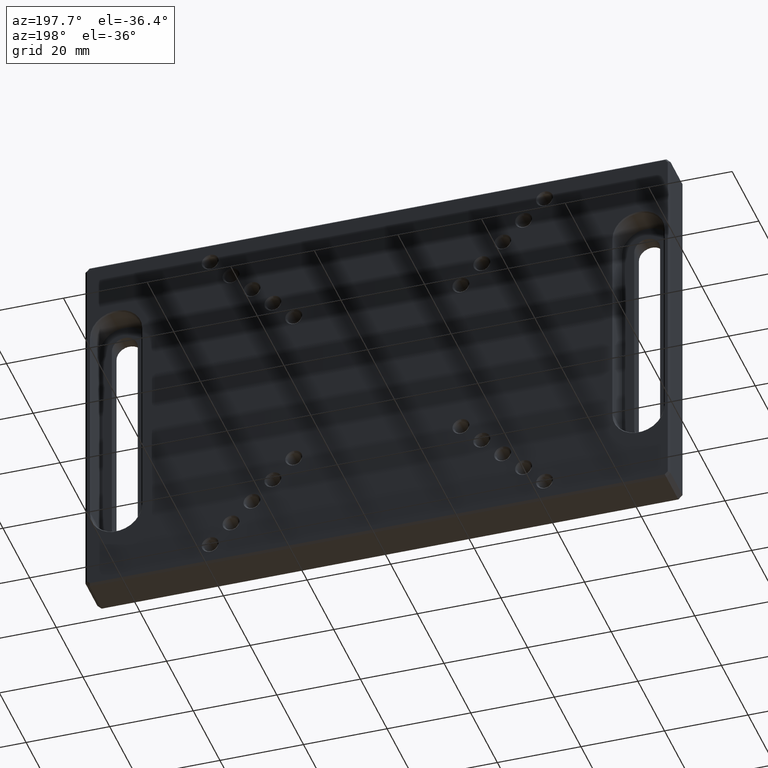
[diagram: clean part render]
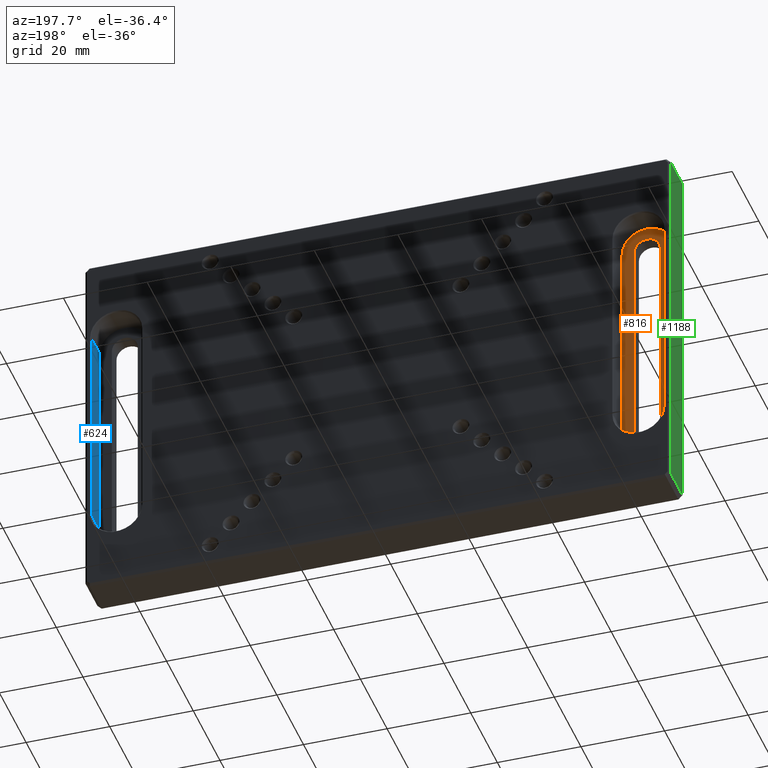
[diagram: same view with three faces highlighted in distinct colors, each labeled with its STEP entity id]
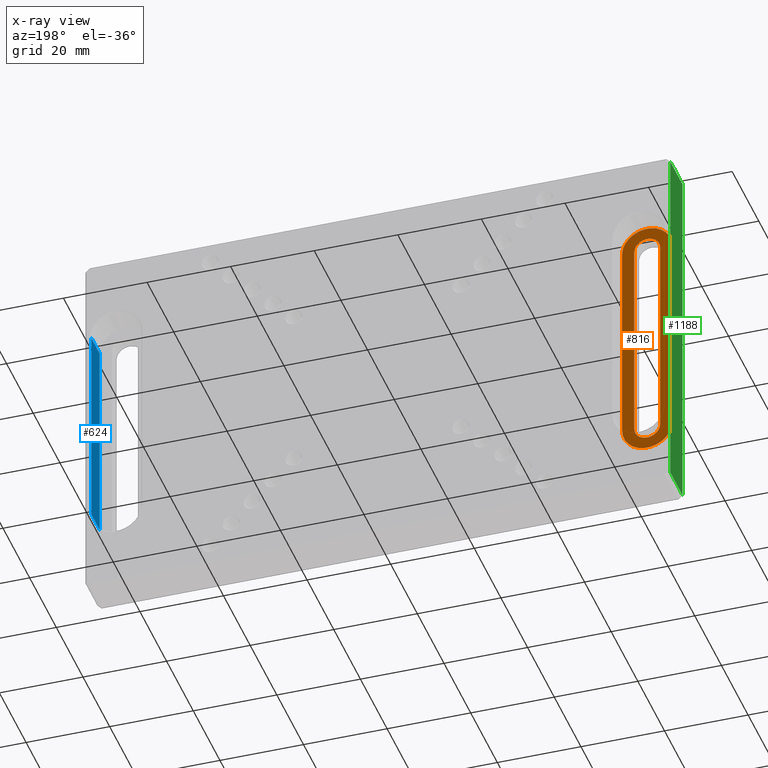
[diagram: x-ray of the same camera — body ghosted, the three highlighted faces saturated]
A machine part, auxiliary view with three faces highlighted in distinct colors.
The next image is the same camera in x-ray (body ghosted, the three faces saturated) — at least one of them is partly hidden behind the body in this view.
Their STEP definitions:

[orange] entity #816 — the highlighted planar face has unit normal (0, 1, 0).
#1 = CARTESIAN_POINT ( 'NONE',  ( -59.40000000000001279, 3.500000000000000444, -25.00000000000000000 ) ) ;
#16 = CIRCLE ( 'NONE', #2191, 3.100000000000001865 ) ;
#46 = ORIENTED_EDGE ( 'NONE', *, *, #819, .F. ) ;
#124 = FACE_BOUND ( 'NONE', #367, .T. ) ;
#128 = DIRECTION ( 'NONE',  ( 0.000000000000000000, 0.000000000000000000, 1.000000000000000000 ) ) ;
#146 = LINE ( 'NONE', #1203, #1098 ) ;
#227 = VECTOR ( 'NONE', #1759, 1000.000000000000000 ) ;
#243 = CARTESIAN_POINT ( 'NONE',  ( -59.40000000000001279, 3.500000000000000444, -25.00000000000000000 ) ) ;
#265 = DIRECTION ( 'NONE',  ( 0.000000000000000000, 0.000000000000000000, 1.000000000000000000 ) ) ;
#324 = CARTESIAN_POINT ( 'NONE',  ( -68.50000000000001421, 3.500000000000000444, 25.00000000000000000 ) ) ;
#338 = ORIENTED_EDGE ( 'NONE', *, *, #1730, .F. ) ;
#365 = EDGE_CURVE ( 'NONE', #853, #706, #2515, .T. ) ;
#367 = EDGE_LOOP ( 'NONE', ( #46, #1101, #1914, #908 ) ) ;
#371 = PLANE ( 'NONE',  #527 ) ;
#446 = VECTOR ( 'NONE', #128, 1000.000000000000000 ) ;
#459 = AXIS2_PLACEMENT_3D ( 'NONE', #1721, #1320, #1353 ) ;
#523 = EDGE_CURVE ( 'NONE', #1358, #672, #1964, .T. ) ;
#527 = AXIS2_PLACEMENT_3D ( 'NONE', #922, #2494, #1362 ) ;
#553 = DIRECTION ( 'NONE',  ( 0.000000000000000000, 1.000000000000000000, 0.000000000000000000 ) ) ;
#589 = LINE ( 'NONE', #812, #1814 ) ;
#623 = DIRECTION ( 'NONE',  ( 0.000000000000000000, 0.000000000000000000, 1.000000000000000000 ) ) ;
#672 = VERTEX_POINT ( 'NONE', #243 ) ;
#699 = DIRECTION ( 'NONE',  ( 0.000000000000000000, 1.000000000000000000, 0.000000000000000000 ) ) ;
#706 = VERTEX_POINT ( 'NONE', #2031 ) ;
#760 = EDGE_LOOP ( 'NONE', ( #871, #1526, #1835, #338 ) ) ;
#792 = AXIS2_PLACEMENT_3D ( 'NONE', #1767, #553, #1339 ) ;
#812 = CARTESIAN_POINT ( 'NONE',  ( -65.60000000000002274, 3.500000000000000444, -25.00000000000000000 ) ) ;
#816 = ADVANCED_FACE ( 'NONE', ( #124, #1971 ), #371, .T. ) ;
#819 = EDGE_CURVE ( 'NONE', #672, #1134, #16, .T. ) ;
#853 = VERTEX_POINT ( 'NONE', #324 ) ;
#871 = ORIENTED_EDGE ( 'NONE', *, *, #1178, .T. ) ;
#891 = CIRCLE ( 'NONE', #1973, 6.000000000000001776 ) ;
#908 = ORIENTED_EDGE ( 'NONE', *, *, #970, .F. ) ;
#922 = CARTESIAN_POINT ( 'NONE',  ( -62.50000000000001421, 3.500000000000000444, -25.00000000000000000 ) ) ;
#970 = EDGE_CURVE ( 'NONE', #1134, #1425, #589, .T. ) ;
#976 = DIRECTION ( 'NONE',  ( 0.000000000000000000, 0.000000000000000000, 1.000000000000000000 ) ) ;
#1098 = VECTOR ( 'NONE', #623, 1000.000000000000000 ) ;
#1101 = ORIENTED_EDGE ( 'NONE', *, *, #523, .F. ) ;
#1103 = CARTESIAN_POINT ( 'NONE',  ( -62.50000000000001421, 3.500000000000000444, -25.00000000000000000 ) ) ;
#1134 = VERTEX_POINT ( 'NONE', #2461 ) ;
#1159 = CARTESIAN_POINT ( 'NONE',  ( -56.50000000000001421, 3.500000000000000444, -25.00000000000000000 ) ) ;
#1178 = EDGE_CURVE ( 'NONE', #1888, #1608, #891, .T. ) ;
#1203 = CARTESIAN_POINT ( 'NONE',  ( -68.50000000000001421, 3.500000000000000444, -25.00000000000000000 ) ) ;
#1320 = DIRECTION ( 'NONE',  ( 0.000000000000000000, 1.000000000000000000, 0.000000000000000000 ) ) ;
#1339 = DIRECTION ( 'NONE',  ( 0.000000000000000000, 0.000000000000000000, 1.000000000000000000 ) ) ;
#1353 = DIRECTION ( 'NONE',  ( 0.000000000000000000, 0.000000000000000000, 1.000000000000000000 ) ) ;
#1358 = VERTEX_POINT ( 'NONE', #2532 ) ;
#1362 = DIRECTION ( 'NONE',  ( 0.000000000000000000, -0.000000000000000000, 1.000000000000000000 ) ) ;
#1363 = EDGE_CURVE ( 'NONE', #1608, #853, #146, .T. ) ;
#1411 = CARTESIAN_POINT ( 'NONE',  ( -65.60000000000002274, 3.500000000000000444, 25.00000000000000000 ) ) ;
#1425 = VERTEX_POINT ( 'NONE', #1411 ) ;
#1526 = ORIENTED_EDGE ( 'NONE', *, *, #1363, .T. ) ;
#1608 = VERTEX_POINT ( 'NONE', #2288 ) ;
#1643 = CARTESIAN_POINT ( 'NONE',  ( -62.50000000000001421, 3.500000000000000444, -25.00000000000000000 ) ) ;
#1721 = CARTESIAN_POINT ( 'NONE',  ( -62.50000000000001421, 3.500000000000000444, 25.00000000000000000 ) ) ;
#1730 = EDGE_CURVE ( 'NONE', #1888, #706, #1734, .T. ) ;
#1734 = LINE ( 'NONE', #1159, #446 ) ;
#1759 = DIRECTION ( 'NONE',  ( -0.000000000000000000, -0.000000000000000000, -1.000000000000000000 ) ) ;
#1767 = CARTESIAN_POINT ( 'NONE',  ( -62.50000000000001421, 3.500000000000000444, 25.00000000000000000 ) ) ;
#1771 = CARTESIAN_POINT ( 'NONE',  ( -56.50000000000001421, 3.500000000000000444, -25.00000000000000000 ) ) ;
#1790 = CIRCLE ( 'NONE', #792, 3.100000000000001865 ) ;
#1803 = DIRECTION ( 'NONE',  ( 0.000000000000000000, 0.000000000000000000, 1.000000000000000000 ) ) ;
#1814 = VECTOR ( 'NONE', #1803, 1000.000000000000000 ) ;
#1835 = ORIENTED_EDGE ( 'NONE', *, *, #365, .T. ) ;
#1888 = VERTEX_POINT ( 'NONE', #1771 ) ;
#1914 = ORIENTED_EDGE ( 'NONE', *, *, #2181, .F. ) ;
#1964 = LINE ( 'NONE', #1, #227 ) ;
#1971 = FACE_OUTER_BOUND ( 'NONE', #760, .T. ) ;
#1973 = AXIS2_PLACEMENT_3D ( 'NONE', #1643, #2249, #265 ) ;
#2031 = CARTESIAN_POINT ( 'NONE',  ( -56.50000000000000711, 3.500000000000000444, 25.00000000000000000 ) ) ;
#2181 = EDGE_CURVE ( 'NONE', #1425, #1358, #1790, .T. ) ;
#2191 = AXIS2_PLACEMENT_3D ( 'NONE', #1103, #699, #976 ) ;
#2249 = DIRECTION ( 'NONE',  ( 0.000000000000000000, 1.000000000000000000, 0.000000000000000000 ) ) ;
#2288 = CARTESIAN_POINT ( 'NONE',  ( -68.50000000000001421, 3.500000000000000444, -25.00000000000000000 ) ) ;
#2461 = CARTESIAN_POINT ( 'NONE',  ( -65.60000000000002274, 3.500000000000000444, -25.00000000000000000 ) ) ;
#2494 = DIRECTION ( 'NONE',  ( 0.000000000000000000, 1.000000000000000000, 0.000000000000000000 ) ) ;
#2515 = CIRCLE ( 'NONE', #459, 6.000000000000001776 ) ;
#2532 = CARTESIAN_POINT ( 'NONE',  ( -59.40000000000001279, 3.500000000000000444, 25.00000000000000000 ) ) ;

[blue] entity #624 — the highlighted planar face has unit normal (-1, 0, 0).
#79 = FACE_OUTER_BOUND ( 'NONE', #942, .T. ) ;
#147 = DIRECTION ( 'NONE',  ( 0.000000000000000000, 0.000000000000000000, 1.000000000000000000 ) ) ;
#340 = LINE ( 'NONE', #1692, #1670 ) ;
#359 = LINE ( 'NONE', #2349, #2171 ) ;
#420 = EDGE_CURVE ( 'NONE', #2509, #1156, #340, .T. ) ;
#457 = DIRECTION ( 'NONE',  ( 0.000000000000000000, 0.000000000000000000, -1.000000000000000000 ) ) ;
#484 = ORIENTED_EDGE ( 'NONE', *, *, #420, .T. ) ;
#511 = VERTEX_POINT ( 'NONE', #617 ) ;
#532 = VECTOR ( 'NONE', #457, 1000.000000000000000 ) ;
#617 = CARTESIAN_POINT ( 'NONE',  ( 68.49999999999998579, 9.749999999999973355, -25.00000000000000711 ) ) ;
#624 = ADVANCED_FACE ( 'NONE', ( #79 ), #2070, .T. ) ;
#702 = DIRECTION ( 'NONE',  ( -0.000000000000000000, 1.000000000000000000, -0.000000000000000000 ) ) ;
#779 = CARTESIAN_POINT ( 'NONE',  ( 68.49999999999998579, 3.500000000000000444, -25.00000000000000711 ) ) ;
#813 = LINE ( 'NONE', #1607, #532 ) ;
#942 = EDGE_LOOP ( 'NONE', ( #484, #1350, #2538, #2267 ) ) ;
#1011 = DIRECTION ( 'NONE',  ( -0.000000000000000000, 1.000000000000000000, -0.000000000000000000 ) ) ;
#1024 = CARTESIAN_POINT ( 'NONE',  ( 68.49999999999998579, 3.500000000000000444, -25.00000000000000711 ) ) ;
#1055 = AXIS2_PLACEMENT_3D ( 'NONE', #1442, #1635, #1878 ) ;
#1156 = VERTEX_POINT ( 'NONE', #2053 ) ;
#1222 = VECTOR ( 'NONE', #1011, 1000.000000000000000 ) ;
#1350 = ORIENTED_EDGE ( 'NONE', *, *, #2404, .T. ) ;
#1440 = EDGE_CURVE ( 'NONE', #2178, #511, #2408, .T. ) ;
#1442 = CARTESIAN_POINT ( 'NONE',  ( 68.49999999999998579, 3.500000000000000444, 0.000000000000000000 ) ) ;
#1607 = CARTESIAN_POINT ( 'NONE',  ( 68.49999999999998579, 9.749999999999975131, 0.000000000000000000 ) ) ;
#1635 = DIRECTION ( 'NONE',  ( -1.000000000000000000, 0.000000000000000000, 0.000000000000000000 ) ) ;
#1645 = CARTESIAN_POINT ( 'NONE',  ( 68.49999999999998579, 3.500000000000000444, 25.00000000000000000 ) ) ;
#1670 = VECTOR ( 'NONE', #702, 1000.000000000000000 ) ;
#1692 = CARTESIAN_POINT ( 'NONE',  ( 68.49999999999998579, 3.500000000000000444, 25.00000000000000000 ) ) ;
#1878 = DIRECTION ( 'NONE',  ( 0.000000000000000000, 0.000000000000000000, 1.000000000000000000 ) ) ;
#2053 = CARTESIAN_POINT ( 'NONE',  ( 68.49999999999998579, 9.749999999999973355, 25.00000000000000000 ) ) ;
#2070 = PLANE ( 'NONE',  #1055 ) ;
#2171 = VECTOR ( 'NONE', #147, 1000.000000000000000 ) ;
#2178 = VERTEX_POINT ( 'NONE', #779 ) ;
#2267 = ORIENTED_EDGE ( 'NONE', *, *, #2567, .T. ) ;
#2349 = CARTESIAN_POINT ( 'NONE',  ( 68.49999999999998579, 3.500000000000000444, 0.000000000000000000 ) ) ;
#2404 = EDGE_CURVE ( 'NONE', #1156, #511, #813, .T. ) ;
#2408 = LINE ( 'NONE', #1024, #1222 ) ;
#2509 = VERTEX_POINT ( 'NONE', #1645 ) ;
#2538 = ORIENTED_EDGE ( 'NONE', *, *, #1440, .F. ) ;
#2567 = EDGE_CURVE ( 'NONE', #2178, #2509, #359, .T. ) ;

[green] entity #1188 — the highlighted planar face has unit normal (1, 0, -0).
#49 = AXIS2_PLACEMENT_3D ( 'NONE', #2264, #471, #1270 ) ;
#111 = DIRECTION ( 'NONE',  ( 3.083952846180990774E-16, 0.000000000000000000, 1.000000000000000000 ) ) ;
#134 = CARTESIAN_POINT ( 'NONE',  ( -70.00000000000001421, 9.500000000000000000, -44.00000000000002842 ) ) ;
#375 = CARTESIAN_POINT ( 'NONE',  ( -70.00000000000001421, 0.5000000000000004441, -44.00000000000002842 ) ) ;
#429 = EDGE_CURVE ( 'NONE', #536, #1183, #1106, .T. ) ;
#445 = CARTESIAN_POINT ( 'NONE',  ( -70.00000000000001421, 9.500000000000000000, -44.00000000000002842 ) ) ;
#471 = DIRECTION ( 'NONE',  ( 1.000000000000000000, 0.000000000000000000, -3.083952846180990774E-16 ) ) ;
#536 = VERTEX_POINT ( 'NONE', #375 ) ;
#618 = EDGE_CURVE ( 'NONE', #1183, #2592, #832, .T. ) ;
#755 = EDGE_CURVE ( 'NONE', #2528, #536, #2097, .T. ) ;
#832 = LINE ( 'NONE', #1249, #2400 ) ;
#870 = DIRECTION ( 'NONE',  ( 0.000000000000000000, 1.000000000000000000, 0.000000000000000000 ) ) ;
#897 = CARTESIAN_POINT ( 'NONE',  ( -70.00000000000001421, 10.00000000000000000, -44.00000000000002842 ) ) ;
#1007 = ORIENTED_EDGE ( 'NONE', *, *, #429, .T. ) ;
#1054 = FACE_OUTER_BOUND ( 'NONE', #1998, .T. ) ;
#1106 = LINE ( 'NONE', #1905, #2440 ) ;
#1183 = VERTEX_POINT ( 'NONE', #1463 ) ;
#1188 = ADVANCED_FACE ( 'NONE', ( #1054 ), #1857, .F. ) ;
#1249 = CARTESIAN_POINT ( 'NONE',  ( -69.99999999999998579, 10.00000000000000000, 43.99999999999998579 ) ) ;
#1264 = ORIENTED_EDGE ( 'NONE', *, *, #618, .T. ) ;
#1270 = DIRECTION ( 'NONE',  ( -3.083952846180990774E-16, 0.000000000000000000, -1.000000000000000000 ) ) ;
#1311 = VECTOR ( 'NONE', #1725, 1000.000000000000000 ) ;
#1356 = EDGE_CURVE ( 'NONE', #2592, #2528, #1935, .T. ) ;
#1463 = CARTESIAN_POINT ( 'NONE',  ( -69.99999999999998579, 0.5000000000000004441, 43.99999999999998579 ) ) ;
#1715 = CARTESIAN_POINT ( 'NONE',  ( -69.99999999999998579, 9.500000000000000000, 43.99999999999998579 ) ) ;
#1725 = DIRECTION ( 'NONE',  ( -3.083952846180990774E-16, 0.000000000000000000, -1.000000000000000000 ) ) ;
#1857 = PLANE ( 'NONE',  #49 ) ;
#1905 = CARTESIAN_POINT ( 'NONE',  ( -70.00000000000001421, 0.5000000000000004441, -45.00000000000001421 ) ) ;
#1935 = LINE ( 'NONE', #134, #1311 ) ;
#1959 = DIRECTION ( 'NONE',  ( 0.000000000000000000, -1.000000000000000000, 0.000000000000000000 ) ) ;
#1975 = VECTOR ( 'NONE', #1959, 1000.000000000000000 ) ;
#1998 = EDGE_LOOP ( 'NONE', ( #2566, #1007, #1264, #2513 ) ) ;
#2097 = LINE ( 'NONE', #897, #1975 ) ;
#2264 = CARTESIAN_POINT ( 'NONE',  ( -70.00000000000001421, 10.00000000000000000, -45.00000000000001421 ) ) ;
#2400 = VECTOR ( 'NONE', #870, 1000.000000000000000 ) ;
#2440 = VECTOR ( 'NONE', #111, 1000.000000000000000 ) ;
#2513 = ORIENTED_EDGE ( 'NONE', *, *, #1356, .T. ) ;
#2528 = VERTEX_POINT ( 'NONE', #445 ) ;
#2566 = ORIENTED_EDGE ( 'NONE', *, *, #755, .T. ) ;
#2592 = VERTEX_POINT ( 'NONE', #1715 ) ;